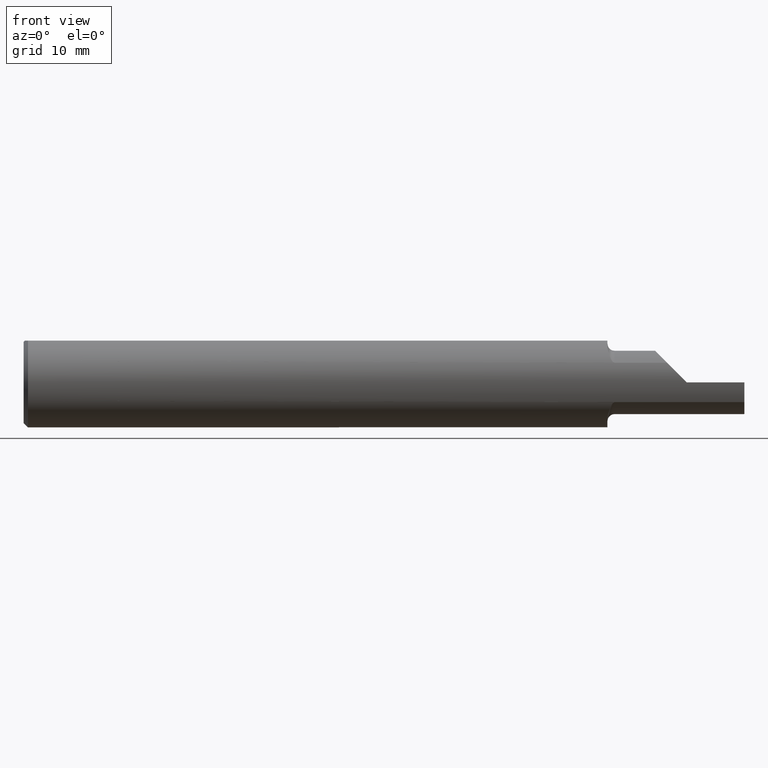
[diagram: clean part render]
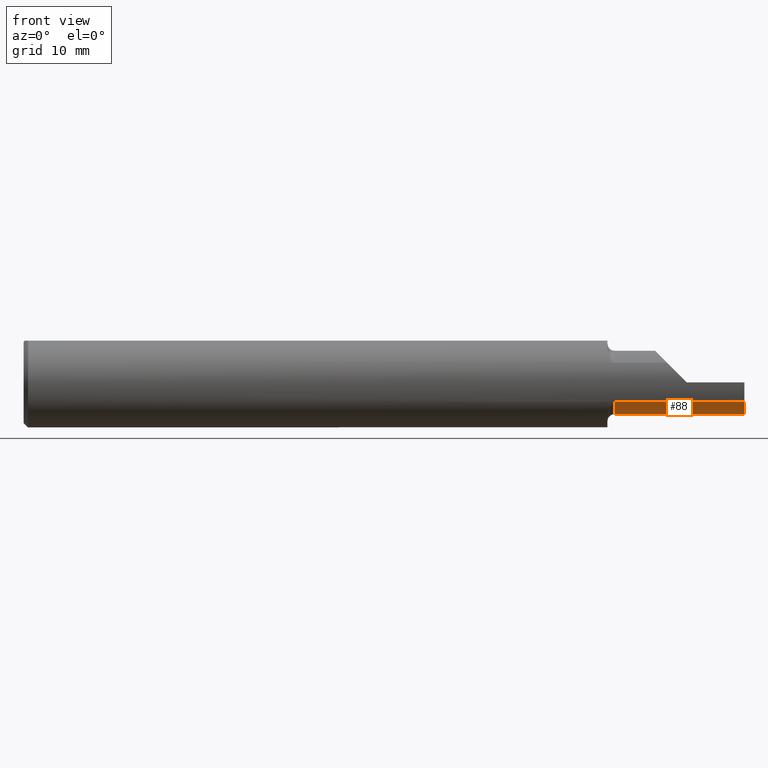
[diagram: same view with one face highlighted and labeled with its STEP entity id]
A machine part, front view. The second image highlights one B-rep face of the part: STEP entity #88.
In plain terms, the highlighted cylindrical surface (edge-blend (fillet) strip) has radius 2.794 mm, axis along (-1, -0, -0).
Its self-contained STEP definition (entity closure, byte-faithful):
#15 = CARTESIAN_POINT ( 'NONE',  ( 2.500000000000000000, -0.06412741814737722701, -0.1095420051181173471 ) ) ;
#30 = CARTESIAN_POINT ( 'NONE',  ( 2.049999999999999822, -0.1404253234750461321, -0.06817579135535316304 ) ) ;
#42 = AXIS2_PLACEMENT_3D ( 'NONE', #511, #452, #106 ) ;
#73 = EDGE_CURVE ( 'NONE', #650, #847, #818, .T. ) ;
#88 = ADVANCED_FACE ( 'NONE', ( #397 ), #807, .T. ) ;
#104 = CARTESIAN_POINT ( 'NONE',  ( 2.229999999999999982, -0.1404253234750461321, -0.06817579135535316304 ) ) ;
#106 = DIRECTION ( 'NONE',  ( 0.000000000000000000, 0.000000000000000000, -1.000000000000000000 ) ) ;
#114 = EDGE_LOOP ( 'NONE', ( #484, #912, #774, #570, #478, #401 ) ) ;
#139 = VERTEX_POINT ( 'NONE', #689 ) ;
#144 = CARTESIAN_POINT ( 'NONE',  ( 2.500000000000000000, -0.06412741814737722701, -0.1095420051181173471 ) ) ;
#165 = CARTESIAN_POINT ( 'NONE',  ( 2.049999999999999822, -0.05409999999999997450, -0.1100000000000000006 ) ) ;
#169 = DIRECTION ( 'NONE',  ( 0.000000000000000000, 0.000000000000000000, 1.000000000000000000 ) ) ;
#180 = LINE ( 'NONE', #238, #202 ) ;
#193 = EDGE_CURVE ( 'NONE', #650, #801, #316, .T. ) ;
#202 = VECTOR ( 'NONE', #449, 39.37007874015748143 ) ;
#238 = CARTESIAN_POINT ( 'NONE',  ( 2.500000000000000000, -0.05410000000000000919, -0.1100000000000000006 ) ) ;
#278 = CARTESIAN_POINT ( 'NONE',  ( 2.500000000000000000, -0.1404253234750461043, -0.06817579135535321855 ) ) ;
#316 = CIRCLE ( 'NONE', #402, 0.1100000000000000006 ) ;
#338 = CARTESIAN_POINT ( 'NONE',  ( 2.498131500062764854, -0.05744828201812200719, -0.1099999999999999867 ) ) ;
#352 =( BOUNDED_CURVE ( )  B_SPLINE_CURVE ( 3, ( #830, #338, #842, #144 ),
 .UNSPECIFIED., .F., .T. ) 
 B_SPLINE_CURVE_WITH_KNOTS ( ( 4, 4 ),
 ( 0.6981317007977316802, 0.7894167739939457196 ),
 .UNSPECIFIED. ) 
 CURVE ( )  GEOMETRIC_REPRESENTATION_ITEM ( )  RATIONAL_B_SPLINE_CURVE ( ( 1.000000000000000000, 0.9993057068285279287, 0.9993057068285279287, 1.000000000000000000 ) ) 
 REPRESENTATION_ITEM ( '' )  );
#397 = FACE_OUTER_BOUND ( 'NONE', #114, .T. ) ;
#399 = CARTESIAN_POINT ( 'NONE',  ( 2.457659549259122667, -0.05410000000000000225, -0.1100000000000000006 ) ) ;
#401 = ORIENTED_EDGE ( 'NONE', *, *, #848, .T. ) ;
#402 = AXIS2_PLACEMENT_3D ( 'NONE', #621, #915, #827 ) ;
#421 = CIRCLE ( 'NONE', #42, 0.1100000000000000006 ) ;
#430 = LINE ( 'NONE', #583, #649 ) ;
#449 = DIRECTION ( 'NONE',  ( -1.000000000000000000, -0.000000000000000000, -0.000000000000000000 ) ) ;
#452 = DIRECTION ( 'NONE',  ( 1.000000000000000000, 0.000000000000000000, 0.000000000000000000 ) ) ;
#472 = AXIS2_PLACEMENT_3D ( 'NONE', #876, #753, #169 ) ;
#476 = EDGE_CURVE ( 'NONE', #139, #676, #180, .T. ) ;
#478 = ORIENTED_EDGE ( 'NONE', *, *, #73, .T. ) ;
#484 = ORIENTED_EDGE ( 'NONE', *, *, #810, .F. ) ;
#511 = CARTESIAN_POINT ( 'NONE',  ( 2.049999999999999822, -0.05409999999999999531, 0.000000000000000000 ) ) ;
#570 = ORIENTED_EDGE ( 'NONE', *, *, #193, .F. ) ;
#583 = CARTESIAN_POINT ( 'NONE',  ( 2.024999999999999911, -0.05409999999999997450, -0.1100000000000000006 ) ) ;
#621 = CARTESIAN_POINT ( 'NONE',  ( 2.500000000000000000, -0.05409999999999999531, 0.000000000000000000 ) ) ;
#649 = VECTOR ( 'NONE', #727, 39.37007874015748143 ) ;
#650 = VERTEX_POINT ( 'NONE', #278 ) ;
#658 = EDGE_CURVE ( 'NONE', #139, #801, #352, .T. ) ;
#676 = VERTEX_POINT ( 'NONE', #399 ) ;
#689 = CARTESIAN_POINT ( 'NONE',  ( 2.497265575455495323, -0.05410000000000000919, -0.1100000000000000006 ) ) ;
#727 = DIRECTION ( 'NONE',  ( -1.000000000000000000, -0.000000000000000000, -0.000000000000000000 ) ) ;
#743 = DIRECTION ( 'NONE',  ( -1.000000000000000000, -0.000000000000000000, -0.000000000000000000 ) ) ;
#753 = DIRECTION ( 'NONE',  ( -1.000000000000000000, -0.000000000000000000, -0.000000000000000000 ) ) ;
#774 = ORIENTED_EDGE ( 'NONE', *, *, #658, .T. ) ;
#801 = VERTEX_POINT ( 'NONE', #15 ) ;
#807 = CYLINDRICAL_SURFACE ( 'NONE', #472, 0.1100000000000000006 ) ;
#810 = EDGE_CURVE ( 'NONE', #676, #838, #430, .T. ) ;
#818 = LINE ( 'NONE', #104, #852 ) ;
#827 = DIRECTION ( 'NONE',  ( 0.000000000000000000, 0.000000000000000000, 1.000000000000000000 ) ) ;
#830 = CARTESIAN_POINT ( 'NONE',  ( 2.497265575455495323, -0.05410000000000000919, -0.1100000000000000006 ) ) ;
#838 = VERTEX_POINT ( 'NONE', #165 ) ;
#842 = CARTESIAN_POINT ( 'NONE',  ( 2.499043608181370502, -0.06079307700223180594, -0.1098472289714905598 ) ) ;
#847 = VERTEX_POINT ( 'NONE', #30 ) ;
#848 = EDGE_CURVE ( 'NONE', #847, #838, #421, .T. ) ;
#852 = VECTOR ( 'NONE', #743, 39.37007874015748143 ) ;
#876 = CARTESIAN_POINT ( 'NONE',  ( 2.024999999999999911, -0.05409999999999999531, 0.000000000000000000 ) ) ;
#912 = ORIENTED_EDGE ( 'NONE', *, *, #476, .F. ) ;
#915 = DIRECTION ( 'NONE',  ( 1.000000000000000000, -0.000000000000000000, -0.000000000000000000 ) ) ;